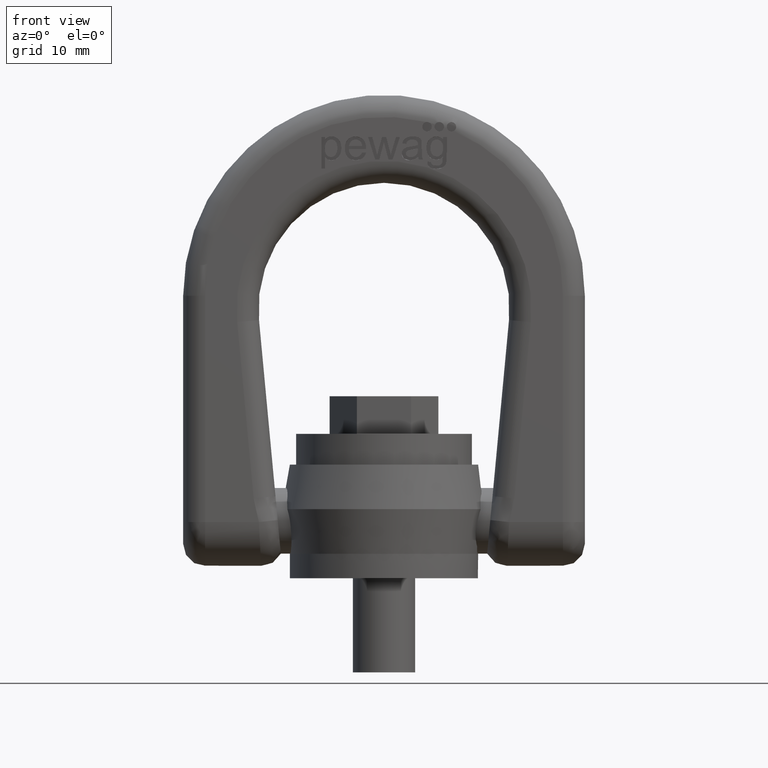
[diagram: clean part render]
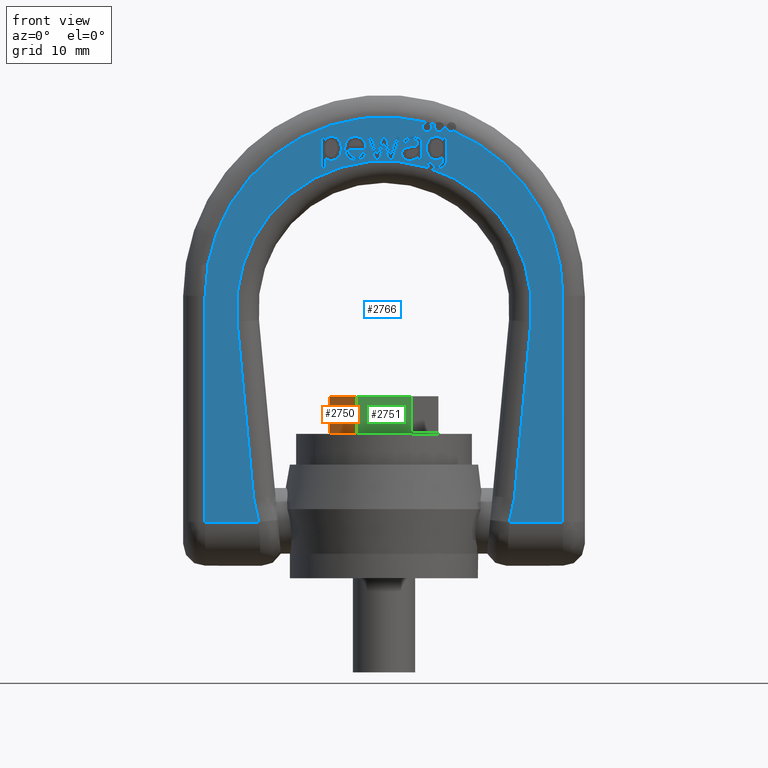
[diagram: same view with three faces highlighted in distinct colors, each labeled with its STEP entity id]
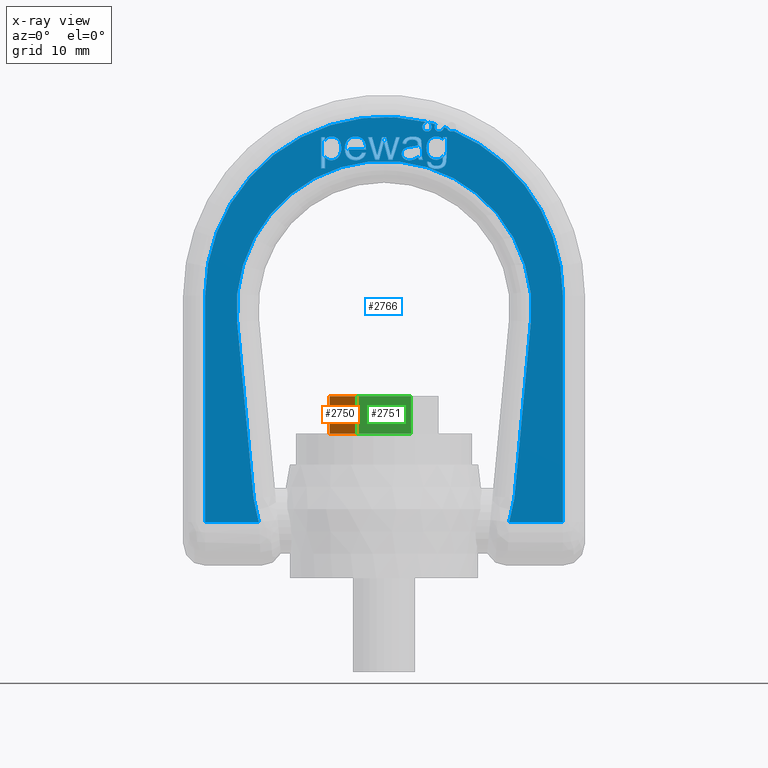
[diagram: x-ray of the same camera — body ghosted, the three highlighted faces saturated]
A machine part, front view with three faces highlighted in distinct colors.
The next image is the same camera in x-ray (body ghosted, the three faces saturated) — at least one of them is partly hidden behind the body in this view.
Their STEP definitions:

[orange] entity #2750 — the highlighted planar face has unit normal (0.866, 0.5, 0).
#1757=LINE('',#6639,#2039);
#1763=LINE('',#6652,#2045);
#1764=LINE('',#6654,#2046);
#1765=LINE('',#6656,#2047);
#2039=VECTOR('',#5858,1.);
#2045=VECTOR('',#5866,1.);
#2046=VECTOR('',#5867,1.);
#2047=VECTOR('',#5868,1.);
#2414=FACE_OUTER_BOUND('',#3080,.T.);
#2631=PLANE('',#5633);
#2750=ADVANCED_FACE('',(#2414),#2631,.F.);
#3080=EDGE_LOOP('',(#3359,#3360,#3361,#3362));
#3359=ORIENTED_EDGE('',*,*,#4959,.T.);
#3360=ORIENTED_EDGE('',*,*,#4965,.F.);
#3361=ORIENTED_EDGE('',*,*,#4966,.F.);
#3362=ORIENTED_EDGE('',*,*,#4967,.T.);
#4557=VERTEX_POINT('',#6640);
#4558=VERTEX_POINT('',#6641);
#4563=VERTEX_POINT('',#6653);
#4564=VERTEX_POINT('',#6655);
#4959=EDGE_CURVE('',#4557,#4558,#1757,.T.);
#4965=EDGE_CURVE('',#4563,#4558,#1763,.T.);
#4966=EDGE_CURVE('',#4564,#4563,#1764,.T.);
#4967=EDGE_CURVE('',#4564,#4557,#1765,.T.);
#5633=AXIS2_PLACEMENT_3D('',#6657,#5869,#5870);
#5858=DIRECTION('',(0.5,-0.866025403784438,0.));
#5866=DIRECTION('',(0.,0.,-1.));
#5867=DIRECTION('',(0.5,-0.866025403784438,0.));
#5868=DIRECTION('',(0.,0.,-1.));
#5869=DIRECTION('',(0.866025403784439,0.5,0.));
#5870=DIRECTION('',(-0.5,0.866025403784439,0.));
#6639=CARTESIAN_POINT('',(-8.66025403784439,0.,23.));
#6640=CARTESIAN_POINT('',(-8.66025403784439,0.,23.));
#6641=CARTESIAN_POINT('',(-4.33012701892219,-7.5,23.));
#6652=CARTESIAN_POINT('',(-4.33012701892219,-7.5,29.));
#6653=CARTESIAN_POINT('',(-4.33012701892219,-7.5,29.));
#6654=CARTESIAN_POINT('',(-8.66025403784439,0.,29.));
#6655=CARTESIAN_POINT('',(-8.66025403784439,0.,29.));
#6656=CARTESIAN_POINT('',(-8.66025403784439,0.,29.));
#6657=CARTESIAN_POINT('',(-8.66025403784439,0.,29.));

[blue] entity #2766 — the highlighted planar face has unit normal (0, 1, 0).
#321=B_SPLINE_CURVE_WITH_KNOTS('',3,(#6750,#6751,#6752,#6753),
 .UNSPECIFIED.,.F.,.F.,(4,4),(0.,1.),.UNSPECIFIED.);
#322=B_SPLINE_CURVE_WITH_KNOTS('',3,(#6758,#6759,#6760,#6761),
 .UNSPECIFIED.,.F.,.F.,(4,4),(0.,1.),.UNSPECIFIED.);
#323=B_SPLINE_CURVE_WITH_KNOTS('',3,(#6763,#6764,#6765,#6766,#6767,#6768,
#6769,#6770,#6771,#6772),.UNSPECIFIED.,.F.,.F.,(4,2,2,2,4),(0.,0.228358481914083,
0.46643434603729,0.703045305681468,1.),.UNSPECIFIED.);
#324=B_SPLINE_CURVE_WITH_KNOTS('',3,(#6774,#6775,#6776,#6777),
 .UNSPECIFIED.,.F.,.F.,(4,4),(0.,1.),.UNSPECIFIED.);
#325=B_SPLINE_CURVE_WITH_KNOTS('',3,(#6781,#6782,#6783,#6784),
 .UNSPECIFIED.,.F.,.F.,(4,4),(0.,1.),.UNSPECIFIED.);
#326=B_SPLINE_CURVE_WITH_KNOTS('',3,(#6786,#6787,#6788,#6789),
 .UNSPECIFIED.,.F.,.F.,(4,4),(0.,1.),.UNSPECIFIED.);
#327=B_SPLINE_CURVE_WITH_KNOTS('',3,(#6791,#6792,#6793,#6794),
 .UNSPECIFIED.,.F.,.F.,(4,4),(0.,1.),.UNSPECIFIED.);
#328=B_SPLINE_CURVE_WITH_KNOTS('',3,(#6796,#6797,#6798,#6799),
 .UNSPECIFIED.,.F.,.F.,(4,4),(0.,1.),.UNSPECIFIED.);
#329=B_SPLINE_CURVE_WITH_KNOTS('',3,(#6801,#6802,#6803,#6804,#6805,#6806),
 .UNSPECIFIED.,.F.,.F.,(4,2,4),(0.,0.559782608695653,1.),.UNSPECIFIED.);
#330=B_SPLINE_CURVE_WITH_KNOTS('',3,(#6808,#6809,#6810,#6811),
 .UNSPECIFIED.,.F.,.F.,(4,4),(0.,1.),.UNSPECIFIED.);
#331=B_SPLINE_CURVE_WITH_KNOTS('',3,(#6815,#6816,#6817,#6818),
 .UNSPECIFIED.,.F.,.F.,(4,4),(0.,1.),.UNSPECIFIED.);
#332=B_SPLINE_CURVE_WITH_KNOTS('',3,(#6820,#6821,#6822,#6823,#6824,#6825),
 .UNSPECIFIED.,.F.,.F.,(4,2,4),(0.,0.476123595505617,1.),.UNSPECIFIED.);
#333=B_SPLINE_CURVE_WITH_KNOTS('',3,(#6827,#6828,#6829,#6830),
 .UNSPECIFIED.,.F.,.F.,(4,4),(0.,1.),.UNSPECIFIED.);
#334=B_SPLINE_CURVE_WITH_KNOTS('',3,(#6832,#6833,#6834,#6835,#6836,#6837,
#6838,#6839),.UNSPECIFIED.,.F.,.F.,(4,2,2,4),(0.,0.472355769230764,0.730769230769224,
1.),.UNSPECIFIED.);
#335=B_SPLINE_CURVE_WITH_KNOTS('',3,(#6843,#6844,#6845,#6846),
 .UNSPECIFIED.,.F.,.F.,(4,4),(0.,1.),.UNSPECIFIED.);
#336=B_SPLINE_CURVE_WITH_KNOTS('',3,(#6848,#6849,#6850,#6851),
 .UNSPECIFIED.,.F.,.F.,(4,4),(0.,1.),.UNSPECIFIED.);
#337=B_SPLINE_CURVE_WITH_KNOTS('',3,(#6853,#6854,#6855,#6856,#6857,#6858,
#6859,#6860,#6861,#6862),.UNSPECIFIED.,.F.,.F.,(4,2,2,2,4),(0.,0.230139294836348,
0.492074150143506,0.754009005450672,1.),.UNSPECIFIED.);
#338=B_SPLINE_CURVE_WITH_KNOTS('',3,(#6878,#6879,#6880,#6881,#6882,#6883),
 .UNSPECIFIED.,.F.,.F.,(4,2,4),(0.,0.32949876746097,1.),.UNSPECIFIED.);
#339=B_SPLINE_CURVE_WITH_KNOTS('',3,(#6885,#6886,#6887,#6888,#6889,#6890,
#6891,#6892),.UNSPECIFIED.,.F.,.F.,(4,2,2,4),(0.,0.361028692437345,0.681441656975489,
1.),.UNSPECIFIED.);
#340=B_SPLINE_CURVE_WITH_KNOTS('',3,(#6894,#6895,#6896,#6897),
 .UNSPECIFIED.,.F.,.F.,(4,4),(0.,1.),.UNSPECIFIED.);
#341=B_SPLINE_CURVE_WITH_KNOTS('',3,(#6901,#6902,#6903,#6904),
 .UNSPECIFIED.,.F.,.F.,(4,4),(0.,1.),.UNSPECIFIED.);
#342=B_SPLINE_CURVE_WITH_KNOTS('',3,(#6906,#6907,#6908,#6909,#6910,#6911),
 .UNSPECIFIED.,.F.,.F.,(4,2,4),(0.,0.555803571428569,1.),.UNSPECIFIED.);
#343=B_SPLINE_CURVE_WITH_KNOTS('',3,(#6913,#6914,#6915,#6916,#6917,#6918),
 .UNSPECIFIED.,.F.,.F.,(4,2,4),(0.,0.499999999999982,1.),.UNSPECIFIED.);
#344=B_SPLINE_CURVE_WITH_KNOTS('',3,(#6920,#6921,#6922,#6923,#6924,#6925,
#6926,#6927,#6928,#6929,#6930,#6931,#6932,#6933),.UNSPECIFIED.,.F.,.F.,
(4,2,2,2,2,2,4),(0.,0.152201346045988,0.327187324733592,0.502173303421195,
0.676318003365112,0.850462703309028,1.),.UNSPECIFIED.);
#345=B_SPLINE_CURVE_WITH_KNOTS('',3,(#6938,#6939,#6940,#6941),
 .UNSPECIFIED.,.F.,.F.,(4,4),(0.,1.),.UNSPECIFIED.);
#346=B_SPLINE_CURVE_WITH_KNOTS('',3,(#6949,#6950,#6951,#6952),
 .UNSPECIFIED.,.F.,.F.,(4,4),(0.,1.),.UNSPECIFIED.);
#347=B_SPLINE_CURVE_WITH_KNOTS('',3,(#6970,#6971,#6972,#6973),
 .UNSPECIFIED.,.F.,.F.,(4,4),(0.,1.),.UNSPECIFIED.);
#348=B_SPLINE_CURVE_WITH_KNOTS('',3,(#6978,#6979,#6980,#6981),
 .UNSPECIFIED.,.F.,.F.,(4,4),(0.,1.),.UNSPECIFIED.);
#349=B_SPLINE_CURVE_WITH_KNOTS('',3,(#6983,#6984,#6985,#6986,#6987,#6988),
 .UNSPECIFIED.,.F.,.F.,(4,2,4),(0.,0.434679334916864,1.),.UNSPECIFIED.);
#350=B_SPLINE_CURVE_WITH_KNOTS('',3,(#6990,#6991,#6992,#6993),
 .UNSPECIFIED.,.F.,.F.,(4,4),(0.,1.),.UNSPECIFIED.);
#351=B_SPLINE_CURVE_WITH_KNOTS('',3,(#6997,#6998,#6999,#7000),
 .UNSPECIFIED.,.F.,.F.,(4,4),(0.,1.),.UNSPECIFIED.);
#352=B_SPLINE_CURVE_WITH_KNOTS('',3,(#7002,#7003,#7004,#7005,#7006,#7007),
 .UNSPECIFIED.,.F.,.F.,(4,2,4),(0.,0.570469798657719,1.),.UNSPECIFIED.);
#353=B_SPLINE_CURVE_WITH_KNOTS('',3,(#7009,#7010,#7011,#7012,#7013,#7014,
#7015,#7016,#7017,#7018,#7019,#7020),.UNSPECIFIED.,.F.,.F.,(4,2,2,2,2,4),
(0.,0.122570626594233,0.245141253188468,0.495637533752414,0.746133814316361,
1.),.UNSPECIFIED.);
#354=B_SPLINE_CURVE_WITH_KNOTS('',3,(#7030,#7031,#7032,#7033),
 .UNSPECIFIED.,.F.,.F.,(4,4),(0.,1.),.UNSPECIFIED.);
#355=B_SPLINE_CURVE_WITH_KNOTS('',3,(#7035,#7036,#7037,#7038),
 .UNSPECIFIED.,.F.,.F.,(4,4),(0.,1.),.UNSPECIFIED.);
#356=B_SPLINE_CURVE_WITH_KNOTS('',3,(#7060,#7061,#7062,#7063),
 .UNSPECIFIED.,.F.,.F.,(4,4),(0.,1.),.UNSPECIFIED.);
#1793=LINE('',#6714,#2075);
#1796=LINE('',#6746,#2078);
#1797=LINE('',#6756,#2079);
#1798=LINE('',#6779,#2080);
#1799=LINE('',#6813,#2081);
#1800=LINE('',#6840,#2082);
#1801=LINE('',#6864,#2083);
#1802=LINE('',#6866,#2084);
#1803=LINE('',#6868,#2085);
#1804=LINE('',#6870,#2086);
#1805=LINE('',#6872,#2087);
#1806=LINE('',#6874,#2088);
#1807=LINE('',#6875,#2089);
#1808=LINE('',#6899,#2090);
#1809=LINE('',#6935,#2091);
#1810=LINE('',#6937,#2092);
#1811=LINE('',#6943,#2093);
#1812=LINE('',#6947,#2094);
#1813=LINE('',#6953,#2095);
#1814=LINE('',#6969,#2096);
#1815=LINE('',#6976,#2097);
#1816=LINE('',#6995,#2098);
#1817=LINE('',#7021,#2099);
#1818=LINE('',#7024,#2100);
#1819=LINE('',#7026,#2101);
#1820=LINE('',#7028,#2102);
#1821=LINE('',#7040,#2103);
#1822=LINE('',#7042,#2104);
#1823=LINE('',#7044,#2105);
#1824=LINE('',#7046,#2106);
#1825=LINE('',#7048,#2107);
#1826=LINE('',#7050,#2108);
#1827=LINE('',#7052,#2109);
#1828=LINE('',#7054,#2110);
#1829=LINE('',#7056,#2111);
#1830=LINE('',#7058,#2112);
#1831=LINE('',#7065,#2113);
#1832=LINE('',#7067,#2114);
#2075=VECTOR('',#5924,1.);
#2078=VECTOR('',#5931,1.);
#2079=VECTOR('',#5936,1.);
#2080=VECTOR('',#5937,1.);
#2081=VECTOR('',#5938,1.);
#2082=VECTOR('',#5939,1.);
#2083=VECTOR('',#5940,1.);
#2084=VECTOR('',#5941,1.);
#2085=VECTOR('',#5942,1.);
#2086=VECTOR('',#5943,1.);
#2087=VECTOR('',#5944,1.);
#2088=VECTOR('',#5945,1.);
#2089=VECTOR('',#5946,1.);
#2090=VECTOR('',#5947,1.);
#2091=VECTOR('',#5948,1.);
#2092=VECTOR('',#5949,1.);
#2093=VECTOR('',#5950,1.);
#2094=VECTOR('',#5953,1.);
#2095=VECTOR('',#5954,1.);
#2096=VECTOR('',#5969,1.);
#2097=VECTOR('',#5970,1.);
#2098=VECTOR('',#5971,1.);
#2099=VECTOR('',#5972,1.);
#2100=VECTOR('',#5973,1.);
#2101=VECTOR('',#5974,1.);
#2102=VECTOR('',#5975,1.);
#2103=VECTOR('',#5976,1.);
#2104=VECTOR('',#5977,1.);
#2105=VECTOR('',#5978,1.);
#2106=VECTOR('',#5979,1.);
#2107=VECTOR('',#5980,1.);
#2108=VECTOR('',#5981,1.);
#2109=VECTOR('',#5982,1.);
#2110=VECTOR('',#5983,1.);
#2111=VECTOR('',#5984,1.);
#2112=VECTOR('',#5985,1.);
#2113=VECTOR('',#5986,1.);
#2114=VECTOR('',#5987,1.);
#2645=PLANE('',#5659);
#2766=ADVANCED_FACE('',(#3021,#3022,#3023,#3024,#3025,#3026),#2645,.F.);
#3021=FACE_BOUND('',#3097,.T.);
#3022=FACE_BOUND('',#3098,.T.);
#3023=FACE_BOUND('',#3099,.T.);
#3024=FACE_BOUND('',#3100,.T.);
#3025=FACE_BOUND('',#3101,.T.);
#3026=FACE_BOUND('',#3102,.T.);
#3097=EDGE_LOOP('',(#3433,#3434,#3435,#3436,#3437,#3438,#3439,#3440,#3441,
#3442,#3443,#3444,#3445,#3446,#3447,#3448,#3449));
#3098=EDGE_LOOP('',(#3450,#3451,#3452,#3453,#3454,#3455,#3456,#3457,#3458,
#3459));
#3099=EDGE_LOOP('',(#3460,#3461,#3462,#3463,#3464,#3465,#3466,#3467,#3468,
#3469,#3470));
#3100=EDGE_LOOP('',(#3471,#3472,#3473,#3474,#3475,#3476,#3477,#3478,#3479,
#3480,#3481,#3482,#3483,#3484,#3485,#3486));
#3101=EDGE_LOOP('',(#3487,#3488,#3489,#3490,#3491,#3492,#3493,#3494,#3495));
#3102=EDGE_LOOP('',(#3496,#3497,#3498,#3499,#3500,#3501,#3502,#3503,#3504,
#3505,#3506,#3507,#3508,#3509,#3510,#3511,#3512,#3513,#3514));
#3433=ORIENTED_EDGE('',*,*,#5003,.F.);
#3434=ORIENTED_EDGE('',*,*,#5004,.F.);
#3435=ORIENTED_EDGE('',*,*,#5005,.F.);
#3436=ORIENTED_EDGE('',*,*,#5006,.F.);
#3437=ORIENTED_EDGE('',*,*,#5007,.F.);
#3438=ORIENTED_EDGE('',*,*,#5008,.F.);
#3439=ORIENTED_EDGE('',*,*,#5009,.F.);
#3440=ORIENTED_EDGE('',*,*,#5010,.F.);
#3441=ORIENTED_EDGE('',*,*,#5011,.F.);
#3442=ORIENTED_EDGE('',*,*,#5012,.F.);
#3443=ORIENTED_EDGE('',*,*,#5013,.F.);
#3444=ORIENTED_EDGE('',*,*,#5014,.F.);
#3445=ORIENTED_EDGE('',*,*,#5015,.F.);
#3446=ORIENTED_EDGE('',*,*,#5016,.F.);
#3447=ORIENTED_EDGE('',*,*,#5017,.F.);
#3448=ORIENTED_EDGE('',*,*,#5018,.F.);
#3449=ORIENTED_EDGE('',*,*,#5019,.F.);
#3450=ORIENTED_EDGE('',*,*,#5020,.F.);
#3451=ORIENTED_EDGE('',*,*,#5021,.F.);
#3452=ORIENTED_EDGE('',*,*,#5022,.F.);
#3453=ORIENTED_EDGE('',*,*,#5023,.F.);
#3454=ORIENTED_EDGE('',*,*,#5024,.F.);
#3455=ORIENTED_EDGE('',*,*,#5025,.F.);
#3456=ORIENTED_EDGE('',*,*,#5026,.F.);
#3457=ORIENTED_EDGE('',*,*,#5027,.F.);
#3458=ORIENTED_EDGE('',*,*,#5028,.F.);
#3459=ORIENTED_EDGE('',*,*,#5029,.F.);
#3460=ORIENTED_EDGE('',*,*,#5030,.F.);
#3461=ORIENTED_EDGE('',*,*,#5031,.F.);
#3462=ORIENTED_EDGE('',*,*,#5032,.F.);
#3463=ORIENTED_EDGE('',*,*,#5033,.F.);
#3464=ORIENTED_EDGE('',*,*,#5034,.F.);
#3465=ORIENTED_EDGE('',*,*,#5035,.F.);
#3466=ORIENTED_EDGE('',*,*,#5036,.F.);
#3467=ORIENTED_EDGE('',*,*,#5037,.F.);
#3468=ORIENTED_EDGE('',*,*,#5038,.F.);
#3469=ORIENTED_EDGE('',*,*,#5039,.F.);
#3470=ORIENTED_EDGE('',*,*,#5040,.F.);
#3471=ORIENTED_EDGE('',*,*,#5001,.T.);
#3472=ORIENTED_EDGE('',*,*,#5041,.T.);
#3473=ORIENTED_EDGE('',*,*,#5042,.T.);
#3474=ORIENTED_EDGE('',*,*,#5043,.T.);
#3475=ORIENTED_EDGE('',*,*,#5044,.T.);
#3476=ORIENTED_EDGE('',*,*,#5045,.T.);
#3477=ORIENTED_EDGE('',*,*,#4995,.T.);
#3478=ORIENTED_EDGE('',*,*,#5046,.T.);
#3479=ORIENTED_EDGE('',*,*,#5047,.T.);
#3480=ORIENTED_EDGE('',*,*,#5048,.F.);
#3481=ORIENTED_EDGE('',*,*,#5049,.T.);
#3482=ORIENTED_EDGE('',*,*,#5050,.F.);
#3483=ORIENTED_EDGE('',*,*,#5051,.T.);
#3484=ORIENTED_EDGE('',*,*,#5052,.F.);
#3485=ORIENTED_EDGE('',*,*,#5053,.T.);
#3486=ORIENTED_EDGE('',*,*,#5054,.T.);
#3487=ORIENTED_EDGE('',*,*,#5055,.F.);
#3488=ORIENTED_EDGE('',*,*,#5056,.F.);
#3489=ORIENTED_EDGE('',*,*,#5057,.F.);
#3490=ORIENTED_EDGE('',*,*,#5058,.F.);
#3491=ORIENTED_EDGE('',*,*,#5059,.F.);
#3492=ORIENTED_EDGE('',*,*,#5060,.F.);
#3493=ORIENTED_EDGE('',*,*,#5061,.F.);
#3494=ORIENTED_EDGE('',*,*,#5062,.F.);
#3495=ORIENTED_EDGE('',*,*,#5063,.F.);
#3496=ORIENTED_EDGE('',*,*,#5064,.F.);
#3497=ORIENTED_EDGE('',*,*,#5065,.F.);
#3498=ORIENTED_EDGE('',*,*,#5066,.F.);
#3499=ORIENTED_EDGE('',*,*,#5067,.F.);
#3500=ORIENTED_EDGE('',*,*,#5068,.F.);
#3501=ORIENTED_EDGE('',*,*,#5069,.F.);
#3502=ORIENTED_EDGE('',*,*,#5070,.F.);
#3503=ORIENTED_EDGE('',*,*,#5071,.F.);
#3504=ORIENTED_EDGE('',*,*,#5072,.F.);
#3505=ORIENTED_EDGE('',*,*,#5073,.F.);
#3506=ORIENTED_EDGE('',*,*,#5074,.F.);
#3507=ORIENTED_EDGE('',*,*,#5075,.F.);
#3508=ORIENTED_EDGE('',*,*,#5076,.F.);
#3509=ORIENTED_EDGE('',*,*,#5077,.F.);
#3510=ORIENTED_EDGE('',*,*,#5078,.F.);
#3511=ORIENTED_EDGE('',*,*,#5079,.F.);
#3512=ORIENTED_EDGE('',*,*,#5080,.F.);
#3513=ORIENTED_EDGE('',*,*,#5081,.F.);
#3514=ORIENTED_EDGE('',*,*,#5082,.F.);
#4581=VERTEX_POINT('',#6715);
#4582=VERTEX_POINT('',#6716);
#4587=VERTEX_POINT('',#6745);
#4588=VERTEX_POINT('',#6747);
#4589=VERTEX_POINT('',#6754);
#4590=VERTEX_POINT('',#6755);
#4591=VERTEX_POINT('',#6757);
#4592=VERTEX_POINT('',#6762);
#4593=VERTEX_POINT('',#6773);
#4594=VERTEX_POINT('',#6778);
#4595=VERTEX_POINT('',#6780);
#4596=VERTEX_POINT('',#6785);
#4597=VERTEX_POINT('',#6790);
#4598=VERTEX_POINT('',#6795);
#4599=VERTEX_POINT('',#6800);
#4600=VERTEX_POINT('',#6807);
#4601=VERTEX_POINT('',#6812);
#4602=VERTEX_POINT('',#6814);
#4603=VERTEX_POINT('',#6819);
#4604=VERTEX_POINT('',#6826);
#4605=VERTEX_POINT('',#6831);
#4606=VERTEX_POINT('',#6841);
#4607=VERTEX_POINT('',#6842);
#4608=VERTEX_POINT('',#6847);
#4609=VERTEX_POINT('',#6852);
#4610=VERTEX_POINT('',#6863);
#4611=VERTEX_POINT('',#6865);
#4612=VERTEX_POINT('',#6867);
#4613=VERTEX_POINT('',#6869);
#4614=VERTEX_POINT('',#6871);
#4615=VERTEX_POINT('',#6873);
#4616=VERTEX_POINT('',#6876);
#4617=VERTEX_POINT('',#6877);
#4618=VERTEX_POINT('',#6884);
#4619=VERTEX_POINT('',#6893);
#4620=VERTEX_POINT('',#6898);
#4621=VERTEX_POINT('',#6900);
#4622=VERTEX_POINT('',#6905);
#4623=VERTEX_POINT('',#6912);
#4624=VERTEX_POINT('',#6919);
#4625=VERTEX_POINT('',#6934);
#4626=VERTEX_POINT('',#6936);
#4627=VERTEX_POINT('',#6942);
#4628=VERTEX_POINT('',#6944);
#4629=VERTEX_POINT('',#6946);
#4630=VERTEX_POINT('',#6948);
#4631=VERTEX_POINT('',#6954);
#4632=VERTEX_POINT('',#6956);
#4633=VERTEX_POINT('',#6958);
#4634=VERTEX_POINT('',#6960);
#4635=VERTEX_POINT('',#6962);
#4636=VERTEX_POINT('',#6964);
#4637=VERTEX_POINT('',#6966);
#4638=VERTEX_POINT('',#6968);
#4639=VERTEX_POINT('',#6974);
#4640=VERTEX_POINT('',#6975);
#4641=VERTEX_POINT('',#6977);
#4642=VERTEX_POINT('',#6982);
#4643=VERTEX_POINT('',#6989);
#4644=VERTEX_POINT('',#6994);
#4645=VERTEX_POINT('',#6996);
#4646=VERTEX_POINT('',#7001);
#4647=VERTEX_POINT('',#7008);
#4648=VERTEX_POINT('',#7022);
#4649=VERTEX_POINT('',#7023);
#4650=VERTEX_POINT('',#7025);
#4651=VERTEX_POINT('',#7027);
#4652=VERTEX_POINT('',#7029);
#4653=VERTEX_POINT('',#7034);
#4654=VERTEX_POINT('',#7039);
#4655=VERTEX_POINT('',#7041);
#4656=VERTEX_POINT('',#7043);
#4657=VERTEX_POINT('',#7045);
#4658=VERTEX_POINT('',#7047);
#4659=VERTEX_POINT('',#7049);
#4660=VERTEX_POINT('',#7051);
#4661=VERTEX_POINT('',#7053);
#4662=VERTEX_POINT('',#7055);
#4663=VERTEX_POINT('',#7057);
#4664=VERTEX_POINT('',#7059);
#4665=VERTEX_POINT('',#7064);
#4666=VERTEX_POINT('',#7066);
#4995=EDGE_CURVE('',#4581,#4582,#1793,.T.);
#5001=EDGE_CURVE('',#4588,#4587,#1796,.T.);
#5003=EDGE_CURVE('',#4589,#4590,#321,.T.);
#5004=EDGE_CURVE('',#4591,#4589,#1797,.T.);
#5005=EDGE_CURVE('',#4592,#4591,#322,.T.);
#5006=EDGE_CURVE('',#4593,#4592,#323,.T.);
#5007=EDGE_CURVE('',#4594,#4593,#324,.T.);
#5008=EDGE_CURVE('',#4595,#4594,#1798,.T.);
#5009=EDGE_CURVE('',#4596,#4595,#325,.T.);
#5010=EDGE_CURVE('',#4597,#4596,#326,.T.);
#5011=EDGE_CURVE('',#4598,#4597,#327,.T.);
#5012=EDGE_CURVE('',#4599,#4598,#328,.T.);
#5013=EDGE_CURVE('',#4600,#4599,#329,.T.);
#5014=EDGE_CURVE('',#4601,#4600,#330,.T.);
#5015=EDGE_CURVE('',#4602,#4601,#1799,.T.);
#5016=EDGE_CURVE('',#4603,#4602,#331,.T.);
#5017=EDGE_CURVE('',#4604,#4603,#332,.T.);
#5018=EDGE_CURVE('',#4605,#4604,#333,.T.);
#5019=EDGE_CURVE('',#4590,#4605,#334,.T.);
#5020=EDGE_CURVE('',#4606,#4607,#1800,.T.);
#5021=EDGE_CURVE('',#4608,#4606,#335,.T.);
#5022=EDGE_CURVE('',#4609,#4608,#336,.T.);
#5023=EDGE_CURVE('',#4610,#4609,#337,.T.);
#5024=EDGE_CURVE('',#4611,#4610,#1801,.T.);
#5025=EDGE_CURVE('',#4612,#4611,#1802,.T.);
#5026=EDGE_CURVE('',#4613,#4612,#1803,.T.);
#5027=EDGE_CURVE('',#4614,#4613,#1804,.T.);
#5028=EDGE_CURVE('',#4615,#4614,#1805,.T.);
#5029=EDGE_CURVE('',#4607,#4615,#1806,.T.);
#5030=EDGE_CURVE('',#4616,#4617,#1807,.T.);
#5031=EDGE_CURVE('',#4618,#4616,#338,.T.);
#5032=EDGE_CURVE('',#4619,#4618,#339,.T.);
#5033=EDGE_CURVE('',#4620,#4619,#340,.T.);
#5034=EDGE_CURVE('',#4621,#4620,#1808,.T.);
#5035=EDGE_CURVE('',#4622,#4621,#341,.T.);
#5036=EDGE_CURVE('',#4623,#4622,#342,.T.);
#5037=EDGE_CURVE('',#4624,#4623,#343,.T.);
#5038=EDGE_CURVE('',#4625,#4624,#344,.T.);
#5039=EDGE_CURVE('',#4626,#4625,#1809,.T.);
#5040=EDGE_CURVE('',#4617,#4626,#1810,.T.);
#5041=EDGE_CURVE('',#4587,#4627,#345,.T.);
#5042=EDGE_CURVE('',#4627,#4628,#1811,.T.);
#5043=EDGE_CURVE('',#4628,#4629,#5567,.T.);
#5044=EDGE_CURVE('',#4629,#4630,#1812,.T.);
#5045=EDGE_CURVE('',#4630,#4581,#346,.T.);
#5046=EDGE_CURVE('',#4582,#4631,#1813,.T.);
#5047=EDGE_CURVE('',#4631,#4632,#5568,.T.);
#5048=EDGE_CURVE('',#4633,#4632,#5569,.T.);
#5049=EDGE_CURVE('',#4633,#4634,#5570,.T.);
#5050=EDGE_CURVE('',#4635,#4634,#5571,.T.);
#5051=EDGE_CURVE('',#4635,#4636,#5572,.T.);
#5052=EDGE_CURVE('',#4637,#4636,#5573,.T.);
#5053=EDGE_CURVE('',#4637,#4638,#5574,.T.);
#5054=EDGE_CURVE('',#4638,#4588,#1814,.T.);
#5055=EDGE_CURVE('',#4639,#4640,#347,.T.);
#5056=EDGE_CURVE('',#4641,#4639,#1815,.T.);
#5057=EDGE_CURVE('',#4642,#4641,#348,.T.);
#5058=EDGE_CURVE('',#4643,#4642,#349,.T.);
#5059=EDGE_CURVE('',#4644,#4643,#350,.T.);
#5060=EDGE_CURVE('',#4645,#4644,#1816,.T.);
#5061=EDGE_CURVE('',#4646,#4645,#351,.T.);
#5062=EDGE_CURVE('',#4647,#4646,#352,.T.);
#5063=EDGE_CURVE('',#4640,#4647,#353,.T.);
#5064=EDGE_CURVE('',#4648,#4649,#1817,.T.);
#5065=EDGE_CURVE('',#4650,#4648,#1818,.T.);
#5066=EDGE_CURVE('',#4651,#4650,#1819,.T.);
#5067=EDGE_CURVE('',#4652,#4651,#1820,.T.);
#5068=EDGE_CURVE('',#4653,#4652,#354,.T.);
#5069=EDGE_CURVE('',#4654,#4653,#355,.T.);
#5070=EDGE_CURVE('',#4655,#4654,#1821,.T.);
#5071=EDGE_CURVE('',#4656,#4655,#1822,.T.);
#5072=EDGE_CURVE('',#4657,#4656,#1823,.T.);
#5073=EDGE_CURVE('',#4658,#4657,#1824,.T.);
#5074=EDGE_CURVE('',#4659,#4658,#1825,.T.);
#5075=EDGE_CURVE('',#4660,#4659,#1826,.T.);
#5076=EDGE_CURVE('',#4661,#4660,#1827,.T.);
#5077=EDGE_CURVE('',#4662,#4661,#1828,.T.);
#5078=EDGE_CURVE('',#4663,#4662,#1829,.T.);
#5079=EDGE_CURVE('',#4664,#4663,#1830,.T.);
#5080=EDGE_CURVE('',#4665,#4664,#356,.T.);
#5081=EDGE_CURVE('',#4666,#4665,#1831,.T.);
#5082=EDGE_CURVE('',#4649,#4666,#1832,.T.);
#5567=CIRCLE('',#5651,23.5);
#5568=CIRCLE('',#5652,28.5);
#5569=CIRCLE('',#5653,0.75);
#5570=CIRCLE('',#5654,28.5);
#5571=CIRCLE('',#5655,0.75);
#5572=CIRCLE('',#5656,28.5);
#5573=CIRCLE('',#5657,0.75);
#5574=CIRCLE('',#5658,28.5);
#5651=AXIS2_PLACEMENT_3D('',#6945,#5951,#5952);
#5652=AXIS2_PLACEMENT_3D('',#6955,#5955,#5956);
#5653=AXIS2_PLACEMENT_3D('',#6957,#5957,#5958);
#5654=AXIS2_PLACEMENT_3D('',#6959,#5959,#5960);
#5655=AXIS2_PLACEMENT_3D('',#6961,#5961,#5962);
#5656=AXIS2_PLACEMENT_3D('',#6963,#5963,#5964);
#5657=AXIS2_PLACEMENT_3D('',#6965,#5965,#5966);
#5658=AXIS2_PLACEMENT_3D('',#6967,#5967,#5968);
#5659=AXIS2_PLACEMENT_3D('',#7068,#5988,#5989);
#5924=DIRECTION('',(1.,0.,-1.37912796481957E-15));
#5931=DIRECTION('',(1.,0.,-8.40256683676266E-16));
#5936=DIRECTION('',(1.,0.,0.));
#5937=DIRECTION('',(-0.989370262977936,0.,-0.145418302613423));
#5938=DIRECTION('',(0.99192898500378,0.,-0.126794671454954));
#5939=DIRECTION('',(-1.,0.,0.));
#5940=DIRECTION('',(1.,0.,0.));
#5941=DIRECTION('',(0.,0.,1.));
#5942=DIRECTION('',(1.,0.,0.));
#5943=DIRECTION('',(0.,0.,-1.));
#5944=DIRECTION('',(-1.,0.,0.));
#5945=DIRECTION('',(0.,0.,1.));
#5946=DIRECTION('',(-1.,0.,0.));
#5947=DIRECTION('',(-0.988666662925711,0.,0.150127377980631));
#5948=DIRECTION('',(-1.,0.,0.));
#5949=DIRECTION('',(0.,0.,-1.));
#5950=DIRECTION('',(-0.0930218178345941,0.,0.995664070561325));
#5951=DIRECTION('',(0.,1.,0.));
#5952=DIRECTION('',(0.,0.,1.));
#5953=DIRECTION('',(-0.0930218178345941,0.,-0.995664070561325));
#5954=DIRECTION('',(-4.83546613512699E-16,0.,1.));
#5955=DIRECTION('',(0.,-1.,0.));
#5956=DIRECTION('',(0.,0.,1.));
#5957=DIRECTION('',(0.,-1.,0.));
#5958=DIRECTION('',(0.,0.,1.));
#5959=DIRECTION('',(0.,-1.,0.));
#5960=DIRECTION('',(0.,0.,1.));
#5961=DIRECTION('',(0.,-1.,0.));
#5962=DIRECTION('',(0.,0.,1.));
#5963=DIRECTION('',(0.,-1.,0.));
#5964=DIRECTION('',(0.,0.,1.));
#5965=DIRECTION('',(0.,-1.,0.));
#5966=DIRECTION('',(0.,0.,1.));
#5967=DIRECTION('',(0.,-1.,0.));
#5968=DIRECTION('',(0.,0.,1.));
#5969=DIRECTION('',(-4.83546613512699E-16,0.,-1.));
#5970=DIRECTION('',(1.,0.,0.));
#5971=DIRECTION('',(-0.992687288142564,0.,0.120714323757219));
#5972=DIRECTION('',(-1.,0.,0.));
#5973=DIRECTION('',(0.304245570453575,0.,0.952593634693923));
#5974=DIRECTION('',(1.,0.,0.));
#5975=DIRECTION('',(0.259135455314436,0.,-0.965840988879112));
#5976=DIRECTION('',(1.,0.,0.));
#5977=DIRECTION('',(0.254367653151694,0.,0.967107593305988));
#5978=DIRECTION('',(1.,0.,0.));
#5979=DIRECTION('',(0.298320908470946,0.,-0.954465628280594));
#5980=DIRECTION('',(-1.,0.,0.));
#5981=DIRECTION('',(-0.26946372262002,0.,0.963010541059526));
#5982=DIRECTION('',(-0.247736970080358,0.,-0.968827329122896));
#5983=DIRECTION('',(-0.266059563516178,0.,-0.96395659065208));
#5984=DIRECTION('',(-1.,0.,0.));
#5985=DIRECTION('',(-0.253070161005814,0.,0.96744792811215));
#5986=DIRECTION('',(-1.,0.,0.));
#5987=DIRECTION('',(-0.287282618696351,0.,-0.957845862858407));
#5988=DIRECTION('',(0.,1.,0.));
#5989=DIRECTION('',(0.,0.,1.));
#6714=CARTESIAN_POINT('',(-4.69593072021063E-14,-7.,8.95000000000001));
#6715=CARTESIAN_POINT('',(19.950753113985,-7.,8.94999999999998));
#6716=CARTESIAN_POINT('',(28.5,-7.,8.94999999999997));
#6745=CARTESIAN_POINT('',(-19.950753113985,-7.,8.95000000000002));
#6746=CARTESIAN_POINT('',(-2.86107400791768E-14,-7.,8.95000000000001));
#6747=CARTESIAN_POINT('',(-28.5,-7.,8.95000000000003));
#6750=CARTESIAN_POINT('',(6.22437691156374,-7.,66.6666666666667));
#6751=CARTESIAN_POINT('',(6.12936812650485,-7.,66.8303914044513));
#6752=CARTESIAN_POINT('',(6.07210255742826,-7.,66.9979534407777));
#6753=CARTESIAN_POINT('',(6.05258020433397,-7.,67.169352775646));
#6754=CARTESIAN_POINT('',(6.22437691156374,-7.,66.6666666666667));
#6755=CARTESIAN_POINT('',(6.05258020433397,-7.,67.169352775646));
#6756=CARTESIAN_POINT('',(0.,-7.,66.6666666666667));
#6757=CARTESIAN_POINT('',(5.5684258475955,-7.,66.6666666666667));
#6758=CARTESIAN_POINT('',(5.43957831717317,-7.,67.1130723970325));
#6759=CARTESIAN_POINT('',(5.46430663109261,-7.,66.9288820670248));
#6760=CARTESIAN_POINT('',(5.50725580790005,-7.,66.7805065234076));
#6761=CARTESIAN_POINT('',(5.5684258475955,-7.,66.6666666666667));
#6762=CARTESIAN_POINT('',(5.43957831717317,-7.,67.1130723970325));
#6763=CARTESIAN_POINT('',(3.15025704431575,-7.,68.3665899206959));
#6764=CARTESIAN_POINT('',(2.93420967007224,-7.,68.1721667945767));
#6765=CARTESIAN_POINT('',(2.82618598295048,-7.,67.9253005883858));
#6766=CARTESIAN_POINT('',(2.82618598295048,-7.,67.3113328216936));
#6767=CARTESIAN_POINT('',(2.9381141406911,-7.,67.0593502174469));
#6768=CARTESIAN_POINT('',(3.38704433368591,-7.,66.6768009272501));
#6769=CARTESIAN_POINT('',(3.69427995054338,-7.,66.5809669992326));
#6770=CARTESIAN_POINT('',(4.5688813691677,-7.,66.5809669992326));
#6771=CARTESIAN_POINT('',(5.02049847074901,-7.,66.7587618316705));
#6772=CARTESIAN_POINT('',(5.43957831717317,-7.,67.1130723970325));
#6773=CARTESIAN_POINT('',(3.15025704431575,-7.,68.3665899206959));
#6774=CARTESIAN_POINT('',(4.27734756295959,-7.,68.7541570734203));
#6775=CARTESIAN_POINT('',(3.74243508817597,-7.,68.6902020977232));
#6776=CARTESIAN_POINT('',(3.36760590876554,-7.,68.5610130468151));
#6777=CARTESIAN_POINT('',(3.15025704431575,-7.,68.3665899206959));
#6778=CARTESIAN_POINT('',(4.27734756295959,-7.,68.7541570734203));
#6779=CARTESIAN_POINT('',(-3.61486524802326,-7.,67.5941543587818));
#6780=CARTESIAN_POINT('',(4.86041517537581,-7.,68.8398567408545));
#6781=CARTESIAN_POINT('',(5.39793063057201,-7.,68.9652084932208));
#6782=CARTESIAN_POINT('',(5.25606819808681,-7.,68.9153236121771));
#6783=CARTESIAN_POINT('',(5.0777640398256,-7.,68.873113328217));
#6784=CARTESIAN_POINT('',(4.86041517537581,-7.,68.8398567408545));
#6785=CARTESIAN_POINT('',(5.39793063057201,-7.,68.9652084932208));
#6786=CARTESIAN_POINT('',(5.38101125789029,-7.,69.3553338449732));
#6787=CARTESIAN_POINT('',(5.39142317954058,-7.,69.2798669736506));
#6788=CARTESIAN_POINT('',(5.39793063057201,-7.,69.1493988232285));
#6789=CARTESIAN_POINT('',(5.39793063057201,-7.,68.9652084932208));
#6790=CARTESIAN_POINT('',(5.38101125789029,-7.,69.3553338449732));
#6791=CARTESIAN_POINT('',(5.27819353159368,-7.,69.5932463545664));
#6792=CARTESIAN_POINT('',(5.33415761046399,-7.,69.5113839856741));
#6793=CARTESIAN_POINT('',(5.36929784603371,-7.,69.4320798158097));
#6794=CARTESIAN_POINT('',(5.38101125789029,-7.,69.3553338449732));
#6795=CARTESIAN_POINT('',(5.27819353159368,-7.,69.5932463545664));
#6796=CARTESIAN_POINT('',(5.00618207847986,-7.,69.7902276797135));
#6797=CARTESIAN_POINT('',(5.13112513828334,-7.,69.7403427986698));
#6798=CARTESIAN_POINT('',(5.22092796251709,-7.,69.6751087234587));
#6799=CARTESIAN_POINT('',(5.27819353159368,-7.,69.5932463545664));
#6800=CARTESIAN_POINT('',(5.00618207847986,-7.,69.7902276797135));
#6801=CARTESIAN_POINT('',(3.86607665777315,-7.,69.7185981069327));
#6802=CARTESIAN_POINT('',(4.0222554825275,-7.,69.8170887695063));
#6803=CARTESIAN_POINT('',(4.23439838615215,-7.,69.8656945510361));
#6804=CARTESIAN_POINT('',(4.71334678206547,-7.,69.8656945510361));
#6805=CARTESIAN_POINT('',(4.88123901867639,-7.,69.8413916602712));
#6806=CARTESIAN_POINT('',(5.00618207847986,-7.,69.7902276797135));
#6807=CARTESIAN_POINT('',(3.86607665777315,-7.,69.7185981069327));
#6808=CARTESIAN_POINT('',(3.54460857682046,-7.,69.1737017139934));
#6809=CARTESIAN_POINT('',(3.60187414589706,-7.,69.4397544128934));
#6810=CARTESIAN_POINT('',(3.70989783301881,-7.,69.6213865438731));
#6811=CARTESIAN_POINT('',(3.86607665777315,-7.,69.7185981069327));
#6812=CARTESIAN_POINT('',(3.54460857682046,-7.,69.1737017139934));
#6813=CARTESIAN_POINT('',(3.34888702344958,-7.,69.1987200877192));
#6814=CARTESIAN_POINT('',(2.93420967007224,-7.,69.2517267843439));
#6815=CARTESIAN_POINT('',(3.45090128196786,-7.,70.0869787669481));
#6816=CARTESIAN_POINT('',(3.1736838680289,-7.,69.9015093374265));
#6817=CARTESIAN_POINT('',(3.00058567059283,-7.,69.6226656433871));
#6818=CARTESIAN_POINT('',(2.93420967007224,-7.,69.2517267843439));
#6819=CARTESIAN_POINT('',(3.45090128196786,-7.,70.0869787669481));
#6820=CARTESIAN_POINT('',(5.56972733780179,-7.,70.1739575338962));
#6821=CARTESIAN_POINT('',(5.36279039500228,-7.,70.3031465848043));
#6822=CARTESIAN_POINT('',(5.03741784343073,-7.,70.3671015605014));
#6823=CARTESIAN_POINT('',(4.11075681655496,-7.,70.3671015605014));
#6824=CARTESIAN_POINT('',(3.72811869590682,-7.,70.2737272959837));
#6825=CARTESIAN_POINT('',(3.45090128196786,-7.,70.0869787669481));
#6826=CARTESIAN_POINT('',(5.56972733780179,-7.,70.1739575338962));
#6827=CARTESIAN_POINT('',(5.95106396824364,-7.,69.7083653108212));
#6828=CARTESIAN_POINT('',(5.90421032081734,-7.,69.891276541315));
#6829=CARTESIAN_POINT('',(5.77666428060129,-7.,70.046047582502));
#6830=CARTESIAN_POINT('',(5.56972733780179,-7.,70.1739575338962));
#6831=CARTESIAN_POINT('',(5.95106396824364,-7.,69.7083653108212));
#6832=CARTESIAN_POINT('',(6.05258020433397,-7.,67.169352775646));
#6833=CARTESIAN_POINT('',(6.03175636103339,-7.,67.3407521105142));
#6834=CARTESIAN_POINT('',(6.02264592958938,-7.,67.678434382195));
#6835=CARTESIAN_POINT('',(6.02264592958938,-7.,68.4561268866718));
#6836=CARTESIAN_POINT('',(6.02264592958938,-7.,68.7311332821694));
#6837=CARTESIAN_POINT('',(6.02264592958938,-7.,69.29265796879));
#6838=CARTESIAN_POINT('',(5.99921910587623,-7.,69.5267331798414));
#6839=CARTESIAN_POINT('',(5.95106396824364,-7.,69.7083653108212));
#6840=CARTESIAN_POINT('',(0.,-7.,69.8183678690203));
#6841=CARTESIAN_POINT('',(-9.41693238758378,-7.,69.8183678690203));
#6842=CARTESIAN_POINT('',(-9.43124877985293,-7.,69.8183678690203));
#6843=CARTESIAN_POINT('',(-8.36532830090454,-7.,70.3671015605014));
#6844=CARTESIAN_POINT('',(-8.83256328496128,-7.,70.3671015605014));
#6845=CARTESIAN_POINT('',(-9.18396564065855,-7.,70.1841903300077));
#6846=CARTESIAN_POINT('',(-9.41693238758378,-7.,69.8183678690203));
#6847=CARTESIAN_POINT('',(-8.36532830090454,-7.,70.3671015605014));
#6848=CARTESIAN_POINT('',(-7.22001691937268,-7.,69.8503453568688));
#6849=CARTESIAN_POINT('',(-7.5011388039305,-7.,70.1944231261192));
#6850=CARTESIAN_POINT('',(-7.88247543437236,-7.,70.3671015605014));
#6851=CARTESIAN_POINT('',(-8.36532830090454,-7.,70.3671015605014));
#6852=CARTESIAN_POINT('',(-7.22001691937268,-7.,69.8503453568688));
#6853=CARTESIAN_POINT('',(-9.35836532830091,-7.,67.0452801227936));
#6854=CARTESIAN_POINT('',(-9.12019262055053,-7.,66.7357380404196));
#6855=CARTESIAN_POINT('',(-8.8026290102167,-7.,66.5809669992326));
#6856=CARTESIAN_POINT('',(-7.95666037613067,-7.,66.5809669992326));
#6857=CARTESIAN_POINT('',(-7.57532374568881,-7.,66.7549245331287));
#6858=CARTESIAN_POINT('',(-6.95581440749658,-7.,67.4481964696854));
#6859=CARTESIAN_POINT('',(-6.80093707294853,-7.,67.9163468917882));
#6860=CARTESIAN_POINT('',(-6.80093707294853,-7.,69.0573036582246));
#6861=CARTESIAN_POINT('',(-6.94019652502115,-7.,69.5062675876184));
#6862=CARTESIAN_POINT('',(-7.22001691937268,-7.,69.8503453568688));
#6863=CARTESIAN_POINT('',(-9.35836532830091,-7.,67.0452801227936));
#6864=CARTESIAN_POINT('',(0.,-7.,67.0452801227936));
#6865=CARTESIAN_POINT('',(-9.37528470098263,-7.,67.0452801227936));
#6866=CARTESIAN_POINT('',(-9.37528470098263,-7.,43.));
#6867=CARTESIAN_POINT('',(-9.37528470098263,-7.,65.2750063954976));
#6868=CARTESIAN_POINT('',(0.,-7.,65.2750063954976));
#6869=CARTESIAN_POINT('',(-10.,-7.,65.2750063954976));
#6870=CARTESIAN_POINT('',(-10.,-7.,43.));
#6871=CARTESIAN_POINT('',(-10.,-7.,70.2852391916092));
#6872=CARTESIAN_POINT('',(0.,-7.,70.2852391916092));
#6873=CARTESIAN_POINT('',(-9.43124877985293,-7.,70.2852391916092));
#6874=CARTESIAN_POINT('',(-9.43124877985293,-7.,43.));
#6875=CARTESIAN_POINT('',(0.,-7.,70.2852391916092));
#6876=CARTESIAN_POINT('',(10.,-7.,70.2852391916092));
#6877=CARTESIAN_POINT('',(9.42343983861521,-7.,70.2852391916092));
#6878=CARTESIAN_POINT('',(9.84382117524566,-7.,66.0028140189307));
#6879=CARTESIAN_POINT('',(9.94794039174855,-7.,66.2573548222052));
#6880=CARTESIAN_POINT('',(10.,-7.,66.6410846763879));
#6881=CARTESIAN_POINT('',(10.,-7.,68.1977487848555));
#6882=CARTESIAN_POINT('',(10.,-7.,69.2414939882323));
#6883=CARTESIAN_POINT('',(10.,-7.,70.2852391916092));
#6884=CARTESIAN_POINT('',(9.84382117524566,-7.,66.0028140189307));
#6885=CARTESIAN_POINT('',(7.29290037092471,-7.,65.4732668201586));
#6886=CARTESIAN_POINT('',(7.57011778486367,-7.,65.2903555896649));
#6887=CARTESIAN_POINT('',(7.91761566994208,-7.,65.199539524175));
#6888=CARTESIAN_POINT('',(8.70371575453895,-7.,65.199539524175));
#6889=CARTESIAN_POINT('',(9.02127936487278,-7.,65.2698899974418));
#6890=CARTESIAN_POINT('',(9.55334601991069,-7.,65.5530282774474));
#6891=CARTESIAN_POINT('',(9.73970195874276,-7.,65.7495523151702));
#6892=CARTESIAN_POINT('',(9.84382117524566,-7.,66.0028140189307));
#6893=CARTESIAN_POINT('',(7.29290037092471,-7.,65.4732668201586));
#6894=CARTESIAN_POINT('',(6.87642350491312,-7.,66.3660782808903));
#6895=CARTESIAN_POINT('',(6.87642350491312,-7.,65.952929137887));
#6896=CARTESIAN_POINT('',(7.01438146677946,-7.,65.6548989511384));
#6897=CARTESIAN_POINT('',(7.29290037092471,-7.,65.4732668201586));
#6898=CARTESIAN_POINT('',(6.87642350491312,-7.,66.3660782808903));
#6899=CARTESIAN_POINT('',(3.62311440004293,-7.,66.8600878232262));
#6900=CARTESIAN_POINT('',(7.48291794104249,-7.,66.2739831158865));
#6901=CARTESIAN_POINT('',(7.7275980998243,-7.,65.8442056792019));
#6902=CARTESIAN_POINT('',(7.58833864775168,-7.,65.9401381427475));
#6903=CARTESIAN_POINT('',(7.50634476475564,-7.,66.0833972883091));
#6904=CARTESIAN_POINT('',(7.48291794104249,-7.,66.2739831158865));
#6905=CARTESIAN_POINT('',(7.7275980998243,-7.,65.8442056792019));
#6906=CARTESIAN_POINT('',(9.0381987375545,-7.,65.8953696597596));
#6907=CARTESIAN_POINT('',(8.8872258736253,-7.,65.7661806088514));
#6908=CARTESIAN_POINT('',(8.65035465608121,-7.,65.7009465336403));
#6909=CARTESIAN_POINT('',(8.067287043665,-7.,65.7009465336403));
#6910=CARTESIAN_POINT('',(7.86815904210321,-7.,65.7495523151702));
#6911=CARTESIAN_POINT('',(7.7275980998243,-7.,65.8442056792019));
#6912=CARTESIAN_POINT('',(9.0381987375545,-7.,65.8953696597596));
#6913=CARTESIAN_POINT('',(9.36487277933233,-7.,67.1412125863393));
#6914=CARTESIAN_POINT('',(9.36487277933233,-7.,66.8137631107701));
#6915=CARTESIAN_POINT('',(9.34795340665062,-7.,66.5566641084677));
#6916=CARTESIAN_POINT('',(9.28027591592373,-7.,66.1831670503965));
#6917=CARTESIAN_POINT('',(9.18787011127741,-7.,66.0258378101817));
#6918=CARTESIAN_POINT('',(9.0381987375545,-7.,65.8953696597596));
#6919=CARTESIAN_POINT('',(9.36487277933233,-7.,67.1412125863393));
#6920=CARTESIAN_POINT('',(9.40912344634607,-7.,69.8516244563827));
#6921=CARTESIAN_POINT('',(9.13581050302596,-7.,70.1957022256332));
#6922=CARTESIAN_POINT('',(8.78180516691612,-7.,70.3671015605014));
#6923=CARTESIAN_POINT('',(7.84733519880263,-7.,70.3671015605014));
#6924=CARTESIAN_POINT('',(7.45688813691677,-7.,70.1893067280635));
#6925=CARTESIAN_POINT('',(6.89204138738856,-7.,69.4806855973395));
#6926=CARTESIAN_POINT('',(6.75148044510965,-7.,69.0368380660016));
#6927=CARTESIAN_POINT('',(6.75148044510965,-7.,67.9751854694296));
#6928=CARTESIAN_POINT('',(6.89594585800742,-7.,67.5364543361474));
#6929=CARTESIAN_POINT('',(7.47641049001106,-7.,66.8406242005628));
#6930=CARTESIAN_POINT('',(7.86165159107178,-7.,66.6666666666667));
#6931=CARTESIAN_POINT('',(8.75187089217154,-7.,66.6666666666667));
#6932=CARTESIAN_POINT('',(9.09416281642481,-7.,66.8239959068816));
#6933=CARTESIAN_POINT('',(9.36487277933233,-7.,67.1412125863393));
#6934=CARTESIAN_POINT('',(9.40912344634607,-7.,69.8516244563827));
#6935=CARTESIAN_POINT('',(0.,-7.,69.8516244563827));
#6936=CARTESIAN_POINT('',(9.42343983861521,-7.,69.8516244563827));
#6937=CARTESIAN_POINT('',(9.42343983861521,-7.,43.));
#6938=CARTESIAN_POINT('',(-19.950753113985,-7.,8.95000000000002));
#6939=CARTESIAN_POINT('',(-20.0884833825924,-7.,10.2376956703809));
#6940=CARTESIAN_POINT('',(-20.6536876342254,-7.,11.4389601671148));
#6941=CARTESIAN_POINT('',(-20.775010178565,-7.,12.7375425982036));
#6942=CARTESIAN_POINT('',(-20.775010178565,-7.,12.7375425982036));
#6943=CARTESIAN_POINT('',(-23.3981056581912,-7.,40.813987280887));
#6944=CARTESIAN_POINT('',(-23.3981056581912,-7.,40.813987280887));
#6945=CARTESIAN_POINT('',(0.,-7.,43.));
#6946=CARTESIAN_POINT('',(23.3981056581912,-7.,40.813987280887));
#6947=CARTESIAN_POINT('',(23.3981056581912,-7.,40.813987280887));
#6948=CARTESIAN_POINT('',(20.775010178565,-7.,12.7375425982036));
#6949=CARTESIAN_POINT('',(20.775010178565,-7.,12.7375425982036));
#6950=CARTESIAN_POINT('',(20.6536876342254,-7.,11.4389601671147));
#6951=CARTESIAN_POINT('',(20.0884833825924,-7.,10.2376956703808));
#6952=CARTESIAN_POINT('',(19.950753113985,-7.,8.94999999999998));
#6953=CARTESIAN_POINT('',(28.5,-7.,43.));
#6954=CARTESIAN_POINT('',(28.5,-7.,45.));
#6955=CARTESIAN_POINT('',(-6.93889390390723E-15,-7.,45.));
#6956=CARTESIAN_POINT('',(11.0960169977955,-7.,71.2512553373097));
#6957=CARTESIAN_POINT('',(10.75,-7.,71.9166666666667));
#6958=CARTESIAN_POINT('',(10.0407917151085,-7.,71.6726920601166));
#6959=CARTESIAN_POINT('',(-6.93889390390723E-15,-7.,45.));
#6960=CARTESIAN_POINT('',(9.54731677113195,-7.,71.8532817821521));
#6961=CARTESIAN_POINT('',(8.8,-7.,71.9166666666667));
#6962=CARTESIAN_POINT('',(8.15956921363637,-7.,72.3069850083797));
#6963=CARTESIAN_POINT('',(-6.93889390390723E-15,-7.,45.));
#6964=CARTESIAN_POINT('',(7.21582951248149,-7.,72.5713946772157));
#6965=CARTESIAN_POINT('',(6.85000000000001,-7.,71.9166666666666));
#6966=CARTESIAN_POINT('',(6.84164670590964,-7.,72.6666201468758));
#6967=CARTESIAN_POINT('',(-6.93889390390723E-15,-7.,45.));
#6968=CARTESIAN_POINT('',(-28.5,-7.,45.));
#6969=CARTESIAN_POINT('',(-28.5,-7.,43.));
#6970=CARTESIAN_POINT('',(-2.85481876748877,-7.,68.3205423381939));
#6971=CARTESIAN_POINT('',(-2.85481876748877,-7.,68.8961371194679));
#6972=CARTESIAN_POINT('',(-2.94201861130995,-7.,69.3233563571246));
#6973=CARTESIAN_POINT('',(-3.11511680874601,-7.,69.6009209516501));
#6974=CARTESIAN_POINT('',(-2.85481876748877,-7.,68.3205423381939));
#6975=CARTESIAN_POINT('',(-3.11511680874601,-7.,69.6009209516501));
#6976=CARTESIAN_POINT('',(0.,-7.,68.3205423381939));
#6977=CARTESIAN_POINT('',(-5.61397800481551,-7.,68.3205423381939));
#6978=CARTESIAN_POINT('',(-5.26517862953081,-7.,67.4034279866974));
#6979=CARTESIAN_POINT('',(-5.47211557233032,-7.,67.6144794064979));
#6980=CARTESIAN_POINT('',(-5.58794820068979,-7.,67.92018419033));
#6981=CARTESIAN_POINT('',(-5.61397800481551,-7.,68.3205423381939));
#6982=CARTESIAN_POINT('',(-5.26517862953081,-7.,67.4034279866974));
#6983=CARTESIAN_POINT('',(-3.8895034814863,-7.,67.2716807367614));
#6984=CARTESIAN_POINT('',(-4.05088826706579,-7.,67.147608083909));
#6985=CARTESIAN_POINT('',(-4.25131775883386,-7.,67.0862113072397));
#6986=CARTESIAN_POINT('',(-4.79924513568035,-7.,67.0862113072397));
#6987=CARTESIAN_POINT('',(-5.05824168673131,-7.,67.191097467383));
#6988=CARTESIAN_POINT('',(-5.26517862953081,-7.,67.4034279866974));
#6989=CARTESIAN_POINT('',(-3.8895034814863,-7.,67.2716807367614));
#6990=CARTESIAN_POINT('',(-3.51727728248845,-7.,67.833205423382));
#6991=CARTESIAN_POINT('',(-3.60317563610334,-7.,67.5825019186493));
#6992=CARTESIAN_POINT('',(-3.72681720570053,-7.,67.3957533896137));
#6993=CARTESIAN_POINT('',(-3.8895034814863,-7.,67.2716807367614));
#6994=CARTESIAN_POINT('',(-3.51727728248845,-7.,67.833205423382));
#6995=CARTESIAN_POINT('',(2.92454852897508,-7.,67.0498563708846));
#6996=CARTESIAN_POINT('',(-2.87564261078935,-7.,67.7551803530315));
#6997=CARTESIAN_POINT('',(-3.44829830155528,-7.,66.8853926835508));
#6998=CARTESIAN_POINT('',(-3.17108088761632,-7.,67.0874904067537));
#6999=CARTESIAN_POINT('',(-2.97976182729225,-7.,67.3765668969046));
#7000=CARTESIAN_POINT('',(-2.87564261078935,-7.,67.7551803530315));
#7001=CARTESIAN_POINT('',(-3.44829830155528,-7.,66.8853926835508));
#7002=CARTESIAN_POINT('',(-5.78577471204529,-7.,67.081094909184));
#7003=CARTESIAN_POINT('',(-5.47471855274289,-7.,66.7472499360451));
#7004=CARTESIAN_POINT('',(-5.04262380425587,-7.,66.5809669992326));
#7005=CARTESIAN_POINT('',(-4.07301360057265,-7.,66.5809669992326));
#7006=CARTESIAN_POINT('',(-3.72551571549424,-7.,66.682015860834));
#7007=CARTESIAN_POINT('',(-3.44829830155528,-7.,66.8853926835508));
#7008=CARTESIAN_POINT('',(-5.78577471204529,-7.,67.081094909184));
#7009=CARTESIAN_POINT('',(-3.11511680874601,-7.,69.6009209516501));
#7010=CARTESIAN_POINT('',(-3.28821500618208,-7.,69.8797646456895));
#7011=CARTESIAN_POINT('',(-3.50035790980673,-7.,70.0767459708366));
#7012=CARTESIAN_POINT('',(-3.99752716860806,-7.,70.309542082374));
#7013=CARTESIAN_POINT('',(-4.25652371965901,-7.,70.3671015605014));
#7014=CARTESIAN_POINT('',(-5.07255807900045,-7.,70.3671015605014));
#7015=CARTESIAN_POINT('',(-5.49814537645604,-7.,70.1893067280635));
#7016=CARTESIAN_POINT('',(-6.10203683217284,-7.,69.4806855973395));
#7017=CARTESIAN_POINT('',(-6.25300969610204,-7.,69.0176515732924));
#7018=CARTESIAN_POINT('',(-6.25300969610204,-7.,67.8690202097724));
#7019=CARTESIAN_POINT('',(-6.09683087134769,-7.,67.4136607828089));
#7020=CARTESIAN_POINT('',(-5.78577471204529,-7.,67.081094909184));
#7021=CARTESIAN_POINT('',(0.,-7.,70.2852391916092));
#7022=CARTESIAN_POINT('',(2.51643131385437,-7.,70.2852391916092));
#7023=CARTESIAN_POINT('',(1.90603240710614,-7.,70.2852391916092));
#7024=CARTESIAN_POINT('',(-5.62437641245708,-7.,44.7963500360817));
#7025=CARTESIAN_POINT('',(1.36070801067222,-7.,66.6666666666667));
#7026=CARTESIAN_POINT('',(0.,-7.,66.6666666666667));
#7027=CARTESIAN_POINT('',(0.712565887941695,-7.,66.6666666666667));
#7028=CARTESIAN_POINT('',(6.58809582922247,-7.,44.767588280077));
#7029=CARTESIAN_POINT('',(0.129498275525478,-7.,68.8398567408545));
#7030=CARTESIAN_POINT('',(0.0566148239734506,-7.,69.1327705295472));
#7031=CARTESIAN_POINT('',(0.102166981193468,-7.,68.9370683039141));
#7032=CARTESIAN_POINT('',(0.126895295112906,-7.,68.8385776413405));
#7033=CARTESIAN_POINT('',(0.129498275525478,-7.,68.8398567408545));
#7034=CARTESIAN_POINT('',(0.0566148239734506,-7.,69.1327705295472));
#7035=CARTESIAN_POINT('',(-0.0123641569597172,-7.,69.4525454080328));
#7036=CARTESIAN_POINT('',(-0.0123641569597172,-7.,69.4346380148376));
#7037=CARTESIAN_POINT('',(0.00976117654714819,-7.,69.3284727551804));
#7038=CARTESIAN_POINT('',(0.0566148239734506,-7.,69.1327705295472));
#7039=CARTESIAN_POINT('',(-0.0123641569597172,-7.,69.4525454080328));
#7040=CARTESIAN_POINT('',(0.,-7.,69.4525454080328));
#7041=CARTESIAN_POINT('',(-0.0266805492288661,-7.,69.4525454080328));
#7042=CARTESIAN_POINT('',(-6.53230392307908,-7.,44.7181199176682));
#7043=CARTESIAN_POINT('',(-0.759419535367994,-7.,66.6666666666667));
#7044=CARTESIAN_POINT('',(0.,-7.,66.6666666666667));
#7045=CARTESIAN_POINT('',(-1.41146612871738,-7.,66.6666666666667));
#7046=CARTESIAN_POINT('',(5.45292474266978,-7.,44.7043269184951));
#7047=CARTESIAN_POINT('',(-2.54246111798009,-7.,70.2852391916092));
#7048=CARTESIAN_POINT('',(0.,-7.,70.2852391916092));
#7049=CARTESIAN_POINT('',(-1.89431899524956,-7.,70.2852391916092));
#7050=CARTESIAN_POINT('',(5.32365031728271,-7.,44.489631287778));
#7051=CARTESIAN_POINT('',(-1.09260102817726,-7.,67.4200562803786));
#7052=CARTESIAN_POINT('',(-6.88670802579153,-7.,44.7609868434267));
#7053=CARTESIAN_POINT('',(-0.967657968373787,-7.,67.9086722947046));
#7054=CARTESIAN_POINT('',(-7.2874836340409,-7.,45.0114025191659));
#7055=CARTESIAN_POINT('',(-0.311706904405543,-7.,70.2852391916092));
#7056=CARTESIAN_POINT('',(0.,-7.,70.2852391916092));
#7057=CARTESIAN_POINT('',(0.331229257499839,-7.,70.2852391916092));
#7058=CARTESIAN_POINT('',(6.99032106201131,-7.,44.8285652645901));
#7059=CARTESIAN_POINT('',(0.82709702609488,-7.,68.3896137119468));
#7060=CARTESIAN_POINT('',(1.05615930240125,-7.,67.4993604502431));
#7061=CARTESIAN_POINT('',(1.0418429101321,-7.,67.5697109235099));
#7062=CARTESIAN_POINT('',(0.966356478167503,-7.,67.8664620107445));
#7063=CARTESIAN_POINT('',(0.82709702609488,-7.,68.3896137119468));
#7064=CARTESIAN_POINT('',(1.05615930240125,-7.,67.4993604502431));
#7065=CARTESIAN_POINT('',(0.,-7.,67.4993604502431));
#7066=CARTESIAN_POINT('',(1.0704756946704,-7.,67.4993604502431));
#7067=CARTESIAN_POINT('',(-5.7594215336021,-7.,44.7273987021375));
#7068=CARTESIAN_POINT('',(0.,-7.,43.));

[green] entity #2751 — the highlighted planar face has unit normal (0, 1, 0).
#1762=LINE('',#6650,#2044);
#1763=LINE('',#6652,#2045);
#1766=LINE('',#6658,#2048);
#1767=LINE('',#6660,#2049);
#2044=VECTOR('',#5863,1.);
#2045=VECTOR('',#5866,1.);
#2048=VECTOR('',#5871,1.);
#2049=VECTOR('',#5872,1.);
#2415=FACE_OUTER_BOUND('',#3081,.T.);
#2632=PLANE('',#5634);
#2751=ADVANCED_FACE('',(#2415),#2632,.F.);
#3081=EDGE_LOOP('',(#3363,#3364,#3365,#3366));
#3363=ORIENTED_EDGE('',*,*,#4964,.T.);
#3364=ORIENTED_EDGE('',*,*,#4968,.F.);
#3365=ORIENTED_EDGE('',*,*,#4969,.F.);
#3366=ORIENTED_EDGE('',*,*,#4965,.T.);
#4558=VERTEX_POINT('',#6641);
#4562=VERTEX_POINT('',#6649);
#4563=VERTEX_POINT('',#6653);
#4565=VERTEX_POINT('',#6659);
#4964=EDGE_CURVE('',#4558,#4562,#1762,.T.);
#4965=EDGE_CURVE('',#4563,#4558,#1763,.T.);
#4968=EDGE_CURVE('',#4565,#4562,#1766,.T.);
#4969=EDGE_CURVE('',#4563,#4565,#1767,.T.);
#5634=AXIS2_PLACEMENT_3D('',#6661,#5873,#5874);
#5863=DIRECTION('',(1.,0.,0.));
#5866=DIRECTION('',(0.,0.,-1.));
#5871=DIRECTION('',(0.,0.,-1.));
#5872=DIRECTION('',(1.,0.,0.));
#5873=DIRECTION('',(0.,1.,0.));
#5874=DIRECTION('',(0.,0.,1.));
#6641=CARTESIAN_POINT('',(-4.33012701892219,-7.5,23.));
#6649=CARTESIAN_POINT('',(4.33012701892219,-7.5,23.));
#6650=CARTESIAN_POINT('',(-4.33012701892219,-7.5,23.));
#6652=CARTESIAN_POINT('',(-4.33012701892219,-7.5,29.));
#6653=CARTESIAN_POINT('',(-4.33012701892219,-7.5,29.));
#6658=CARTESIAN_POINT('',(4.33012701892219,-7.5,29.));
#6659=CARTESIAN_POINT('',(4.33012701892219,-7.5,29.));
#6660=CARTESIAN_POINT('',(-4.33012701892219,-7.5,29.));
#6661=CARTESIAN_POINT('',(-4.33012701892219,-7.5,29.));